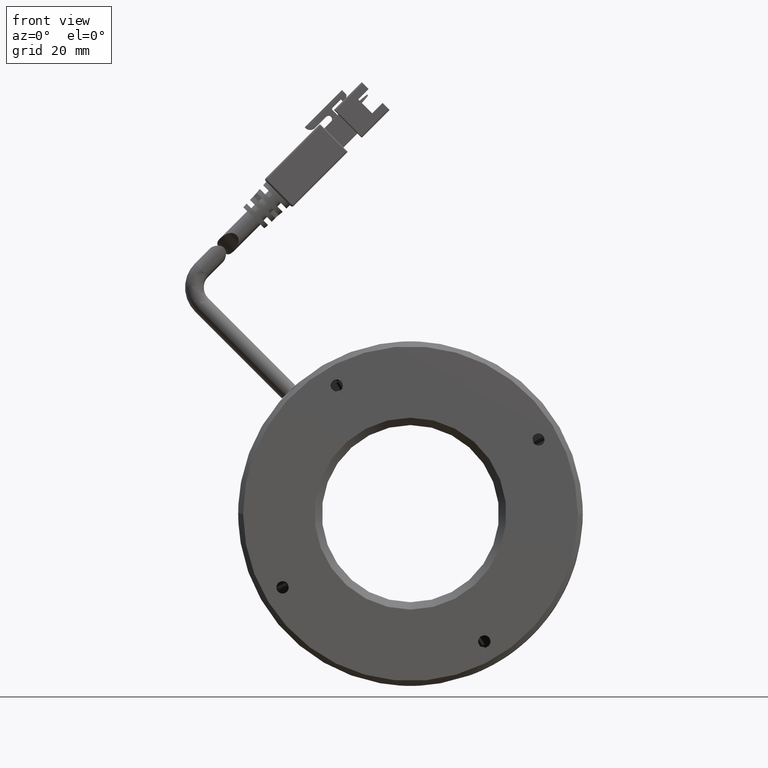
[diagram: clean part render]
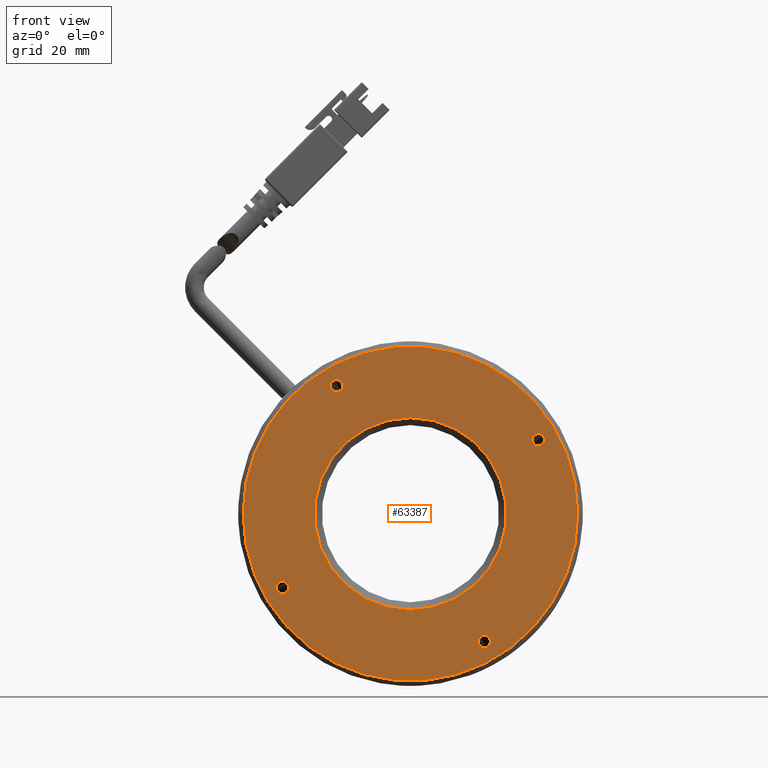
[diagram: same view with one face highlighted and labeled with its STEP entity id]
A machine part, front view. The second image highlights one B-rep face of the part: STEP entity #63387.
In plain terms, the highlighted planar face has unit normal (0, 1, 0).
Its self-contained STEP definition (entity closure, byte-faithful):
#349 = VERTEX_POINT ( 'NONE', #6278 ) ;
#2792 = EDGE_CURVE ( 'NONE', #349, #19846, #33623, .T. ) ;
#3105 = AXIS2_PLACEMENT_3D ( 'NONE', #90527, #42582, #98654 ) ;
#3577 = EDGE_LOOP ( 'NONE', ( #69020, #4127 ) ) ;
#4127 = ORIENTED_EDGE ( 'NONE', *, *, #67249, .F. ) ;
#4972 = CARTESIAN_POINT ( 'NONE',  ( -63.20452567391775000, -26.73693679055957900, -29.35242548495545000 ) ) ;
#5220 = EDGE_CURVE ( 'NONE', #76048, #82833, #88375, .T. ) ;
#5786 = EDGE_CURVE ( 'NONE', #100203, #31572, #61748, .T. ) ;
#6278 = CARTESIAN_POINT ( 'NONE',  ( -63.20452567391775000, -26.73693679055957900, -26.85242548495546100 ) ) ;
#6769 = AXIS2_PLACEMENT_3D ( 'NONE', #71514, #23524, #79577 ) ;
#11513 = ORIENTED_EDGE ( 'NONE', *, *, #103834, .F. ) ;
#12384 = EDGE_LOOP ( 'NONE', ( #11513, #18444 ) ) ;
#12541 = CARTESIAN_POINT ( 'NONE',  ( -22.22376356038446600, -26.73693679055957900, -40.33318759848835800 ) ) ;
#13168 = FACE_BOUND ( 'NONE', #104109, .T. ) ;
#13366 = CIRCLE ( 'NONE', #68427, 34.00000000000004300 ) ;
#15672 = FACE_BOUND ( 'NONE', #3577, .T. ) ;
#18444 = ORIENTED_EDGE ( 'NONE', *, *, #18882, .F. ) ;
#18528 = AXIS2_PLACEMENT_3D ( 'NONE', #40373, #96499, #48428 ) ;
#18882 = EDGE_CURVE ( 'NONE', #51560, #81784, #35885, .T. ) ;
#19338 = CARTESIAN_POINT ( 'NONE',  ( -71.22376356038472500, -26.73693679055958200, -13.10242548495533300 ) ) ;
#19369 = CARTESIAN_POINT ( 'NONE',  ( -3.223763560384632000, -26.73693679055958200, -13.10242548495532900 ) ) ;
#19680 = VERTEX_POINT ( 'NONE', #19338 ) ;
#19846 = VERTEX_POINT ( 'NONE', #4972 ) ;
#20000 = CARTESIAN_POINT ( 'NONE',  ( -37.22376356038467500, -26.73693679055958200, -13.10242548495533300 ) ) ;
#23524 = DIRECTION ( 'NONE',  ( -0.0000000000000000000, -1.000000000000000000, -0.0000000000000000000 ) ) ;
#23940 = CARTESIAN_POINT ( 'NONE',  ( -37.22376356038467500, -26.73693679055958200, -32.60242548495536100 ) ) ;
#24274 = CIRCLE ( 'NONE', #42181, 19.50000000000002500 ) ;
#24651 = CARTESIAN_POINT ( 'NONE',  ( -52.22376356038507300, -26.73693679055957900, 11.62833662857759600 ) ) ;
#27609 = EDGE_CURVE ( 'NONE', #19846, #349, #85411, .T. ) ;
#27695 = VERTEX_POINT ( 'NONE', #19369 ) ;
#28100 = DIRECTION ( 'NONE',  ( 0.0000000000000000000, 0.0000000000000000000, -1.000000000000000000 ) ) ;
#29107 = ORIENTED_EDGE ( 'NONE', *, *, #51134, .F. ) ;
#29908 = CIRCLE ( 'NONE', #18528, 1.249999999999994200 ) ;
#29984 = CARTESIAN_POINT ( 'NONE',  ( -55.22376356038467500, -26.73693679055958200, -13.10242548495533300 ) ) ;
#30659 = CIRCLE ( 'NONE', #37417, 1.249999999999994200 ) ;
#30977 = DIRECTION ( 'NONE',  ( 2.478176394252581700E-017, 1.000000000000000000, 0.0000000000000000000 ) ) ;
#31572 = VERTEX_POINT ( 'NONE', #42475 ) ;
#33623 = CIRCLE ( 'NONE', #88327, 1.249999999999994200 ) ;
#34568 = FACE_OUTER_BOUND ( 'NONE', #103938, .T. ) ;
#34594 = EDGE_LOOP ( 'NONE', ( #43199, #59544 ) ) ;
#34832 = ORIENTED_EDGE ( 'NONE', *, *, #27609, .F. ) ;
#35525 = CARTESIAN_POINT ( 'NONE',  ( -22.22376356038446600, -26.73693679055957900, -39.08318759848835800 ) ) ;
#35885 = CIRCLE ( 'NONE', #76782, 1.249999999999994200 ) ;
#37057 = FACE_BOUND ( 'NONE', #34594, .T. ) ;
#37348 = CARTESIAN_POINT ( 'NONE',  ( -37.22376356038467500, -26.73693679055958200, -13.10242548495533300 ) ) ;
#37417 = AXIS2_PLACEMENT_3D ( 'NONE', #35525, #91535, #43585 ) ;
#38059 = DIRECTION ( 'NONE',  ( 0.0000000000000000000, -0.0000000000000000000, 1.000000000000000000 ) ) ;
#39204 = DIRECTION ( 'NONE',  ( -0.0000000000000000000, -1.000000000000000000, -0.0000000000000000000 ) ) ;
#40373 = CARTESIAN_POINT ( 'NONE',  ( -11.24300144685170000, -26.73693679055957900, 1.897574515044971000 ) ) ;
#41424 = DIRECTION ( 'NONE',  ( -0.0000000000000000000, -1.000000000000000000, -0.0000000000000000000 ) ) ;
#42118 = DIRECTION ( 'NONE',  ( -0.0000000000000000000, -1.000000000000000000, -0.0000000000000000000 ) ) ;
#42181 = AXIS2_PLACEMENT_3D ( 'NONE', #93802, #45809, #101893 ) ;
#42475 = CARTESIAN_POINT ( 'NONE',  ( -22.22376356038446600, -26.73693679055957900, -37.83318759848836500 ) ) ;
#42582 = DIRECTION ( 'NONE',  ( -0.0000000000000000000, -1.000000000000000000, -0.0000000000000000000 ) ) ;
#43199 = ORIENTED_EDGE ( 'NONE', *, *, #5786, .F. ) ;
#43585 = DIRECTION ( 'NONE',  ( 0.0000000000000000000, 0.0000000000000000000, -1.000000000000000000 ) ) ;
#44922 = CARTESIAN_POINT ( 'NONE',  ( -52.22376356038507300, -26.73693679055957900, 14.12833662857758400 ) ) ;
#45429 = DIRECTION ( 'NONE',  ( -1.000000000000000000, 0.0000000000000000000, 0.0000000000000000000 ) ) ;
#45809 = DIRECTION ( 'NONE',  ( 0.0000000000000000000, -1.000000000000000000, 0.0000000000000000000 ) ) ;
#46979 = CARTESIAN_POINT ( 'NONE',  ( -52.22376356038507300, -26.73693679055957900, 12.87833662857758900 ) ) ;
#48428 = DIRECTION ( 'NONE',  ( 0.0000000000000000000, 0.0000000000000000000, -1.000000000000000000 ) ) ;
#48744 = AXIS2_PLACEMENT_3D ( 'NONE', #89401, #41424, #97512 ) ;
#50178 = EDGE_CURVE ( 'NONE', #62102, #99697, #72537, .T. ) ;
#51134 = EDGE_CURVE ( 'NONE', #82833, #76048, #24274, .T. ) ;
#51560 = VERTEX_POINT ( 'NONE', #66423 ) ;
#53829 = PLANE ( 'NONE',  #103777 ) ;
#54336 = AXIS2_PLACEMENT_3D ( 'NONE', #46979, #103096, #55009 ) ;
#55009 = DIRECTION ( 'NONE',  ( 0.0000000000000000000, 0.0000000000000000000, -1.000000000000000000 ) ) ;
#55239 = EDGE_CURVE ( 'NONE', #31572, #100203, #30659, .T. ) ;
#56643 = CIRCLE ( 'NONE', #54336, 1.249999999999994200 ) ;
#59544 = ORIENTED_EDGE ( 'NONE', *, *, #55239, .F. ) ;
#61748 = CIRCLE ( 'NONE', #6769, 1.249999999999994200 ) ;
#62102 = VERTEX_POINT ( 'NONE', #24651 ) ;
#62471 = AXIS2_PLACEMENT_3D ( 'NONE', #78982, #30977, #87077 ) ;
#63387 = ADVANCED_FACE ( 'NONE', ( #98515, #37057, #77163, #15672, #34568, #13168 ), #53829, .F. ) ;
#65433 = ORIENTED_EDGE ( 'NONE', *, *, #2792, .F. ) ;
#66423 = CARTESIAN_POINT ( 'NONE',  ( -11.24300144685170000, -26.73693679055957900, 3.147574515044965400 ) ) ;
#67249 = EDGE_CURVE ( 'NONE', #99697, #62102, #56643, .T. ) ;
#68427 = AXIS2_PLACEMENT_3D ( 'NONE', #37348, #93423, #45429 ) ;
#69020 = ORIENTED_EDGE ( 'NONE', *, *, #50178, .F. ) ;
#71514 = CARTESIAN_POINT ( 'NONE',  ( -22.22376356038446600, -26.73693679055957900, -39.08318759848835800 ) ) ;
#72537 = CIRCLE ( 'NONE', #48744, 1.249999999999994200 ) ;
#74452 = EDGE_LOOP ( 'NONE', ( #34832, #65433 ) ) ;
#75741 = CARTESIAN_POINT ( 'NONE',  ( -37.22376356038467500, -26.73693679055958200, 6.397574515044687400 ) ) ;
#76048 = VERTEX_POINT ( 'NONE', #23940 ) ;
#76091 = DIRECTION ( 'NONE',  ( 0.0000000000000000000, -1.000000000000000000, 0.0000000000000000000 ) ) ;
#76782 = AXIS2_PLACEMENT_3D ( 'NONE', #87224, #39204, #95308 ) ;
#77163 = FACE_BOUND ( 'NONE', #12384, .T. ) ;
#78982 = CARTESIAN_POINT ( 'NONE',  ( -37.22376356038467500, -26.73693679055958200, -13.10242548495533300 ) ) ;
#79577 = DIRECTION ( 'NONE',  ( 0.0000000000000000000, 0.0000000000000000000, -1.000000000000000000 ) ) ;
#81784 = VERTEX_POINT ( 'NONE', #97089 ) ;
#82833 = VERTEX_POINT ( 'NONE', #75741 ) ;
#85411 = CIRCLE ( 'NONE', #3105, 1.249999999999994200 ) ;
#86079 = DIRECTION ( 'NONE',  ( 0.0000000000000000000, 1.000000000000000000, 0.0000000000000000000 ) ) ;
#87077 = DIRECTION ( 'NONE',  ( -1.000000000000000000, 0.0000000000000000000, 0.0000000000000000000 ) ) ;
#87224 = CARTESIAN_POINT ( 'NONE',  ( -11.24300144685170000, -26.73693679055957900, 1.897574515044971000 ) ) ;
#88327 = AXIS2_PLACEMENT_3D ( 'NONE', #90070, #42118, #98188 ) ;
#88375 = CIRCLE ( 'NONE', #97416, 19.50000000000002500 ) ;
#89370 = ORIENTED_EDGE ( 'NONE', *, *, #92110, .F. ) ;
#89401 = CARTESIAN_POINT ( 'NONE',  ( -52.22376356038507300, -26.73693679055957900, 12.87833662857758900 ) ) ;
#90070 = CARTESIAN_POINT ( 'NONE',  ( -63.20452567391775000, -26.73693679055957900, -28.10242548495545400 ) ) ;
#90527 = CARTESIAN_POINT ( 'NONE',  ( -63.20452567391775000, -26.73693679055957900, -28.10242548495545400 ) ) ;
#91535 = DIRECTION ( 'NONE',  ( -0.0000000000000000000, -1.000000000000000000, -0.0000000000000000000 ) ) ;
#92110 = EDGE_CURVE ( 'NONE', #19680, #27695, #101775, .T. ) ;
#92579 = ORIENTED_EDGE ( 'NONE', *, *, #100818, .F. ) ;
#93423 = DIRECTION ( 'NONE',  ( 2.478176394252581700E-017, 1.000000000000000000, 0.0000000000000000000 ) ) ;
#93802 = CARTESIAN_POINT ( 'NONE',  ( -37.22376356038467500, -26.73693679055958200, -13.10242548495533300 ) ) ;
#95308 = DIRECTION ( 'NONE',  ( 0.0000000000000000000, 0.0000000000000000000, -1.000000000000000000 ) ) ;
#96499 = DIRECTION ( 'NONE',  ( -0.0000000000000000000, -1.000000000000000000, -0.0000000000000000000 ) ) ;
#97089 = CARTESIAN_POINT ( 'NONE',  ( -11.24300144685170000, -26.73693679055957900, 0.6475745150449768700 ) ) ;
#97416 = AXIS2_PLACEMENT_3D ( 'NONE', #20000, #76091, #28100 ) ;
#97512 = DIRECTION ( 'NONE',  ( 0.0000000000000000000, 0.0000000000000000000, -1.000000000000000000 ) ) ;
#98188 = DIRECTION ( 'NONE',  ( 0.0000000000000000000, 0.0000000000000000000, -1.000000000000000000 ) ) ;
#98515 = FACE_BOUND ( 'NONE', #74452, .T. ) ;
#98654 = DIRECTION ( 'NONE',  ( 0.0000000000000000000, 0.0000000000000000000, -1.000000000000000000 ) ) ;
#99697 = VERTEX_POINT ( 'NONE', #44922 ) ;
#100203 = VERTEX_POINT ( 'NONE', #12541 ) ;
#100818 = EDGE_CURVE ( 'NONE', #27695, #19680, #13366, .T. ) ;
#101174 = ORIENTED_EDGE ( 'NONE', *, *, #5220, .F. ) ;
#101775 = CIRCLE ( 'NONE', #62471, 34.00000000000004300 ) ;
#101893 = DIRECTION ( 'NONE',  ( 0.0000000000000000000, 0.0000000000000000000, -1.000000000000000000 ) ) ;
#103096 = DIRECTION ( 'NONE',  ( -0.0000000000000000000, -1.000000000000000000, -0.0000000000000000000 ) ) ;
#103777 = AXIS2_PLACEMENT_3D ( 'NONE', #29984, #86079, #38059 ) ;
#103834 = EDGE_CURVE ( 'NONE', #81784, #51560, #29908, .T. ) ;
#103938 = EDGE_LOOP ( 'NONE', ( #89370, #92579 ) ) ;
#104109 = EDGE_LOOP ( 'NONE', ( #101174, #29107 ) ) ;